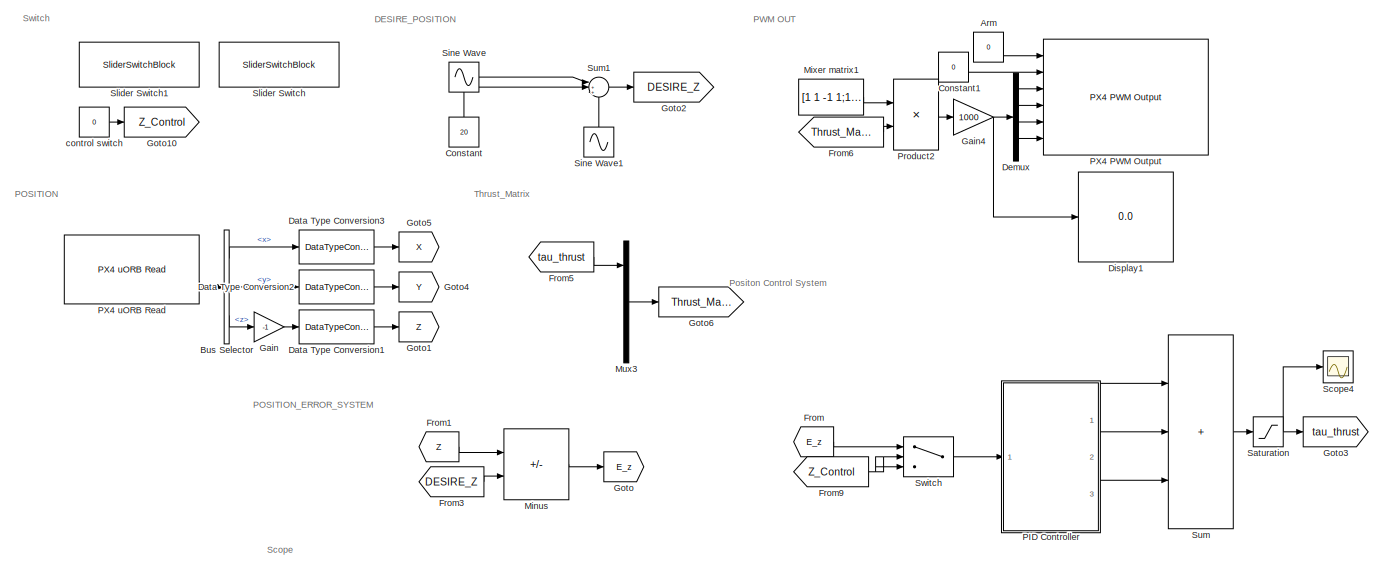
[diagram: root canvas - part 1/2, full width, top band]
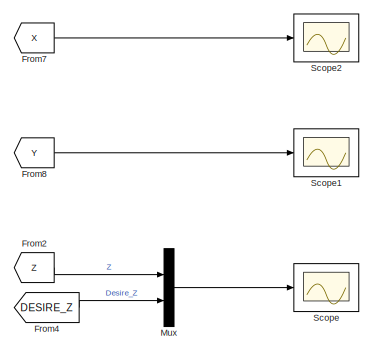
[diagram: root canvas - part 2/2, bottom center region]
MODEL slx_bd8e3afc3680
KIND model
CONFIG AbsTol = auto
CONFIG EnableMultiTasking = on
CONFIG FixedStep = auto
CONFIG MaxStep = auto
CONFIG MinStep = auto
CONFIG RelTol = 1e-3
CONFIG SampleTimeConstraint = Unconstrained
CONFIG SolverName = FixedStepDiscrete
CONFIG StartTime = 0.0
CONFIG StopTime = inf
BLOCK [Constant] Arm
  OutDataTypeStr = boolean
  Value = 0
BLOCK [BusSelector] Bus Selector
  OutputSignals = x,y,z
  Ports = [1, 3]
BLOCK [Constant] Constant
  NameLocation = right
  Value = 20
BLOCK [Constant] Constant1
  OutDataTypeStr = boolean
  Value = 0
BLOCK [DataTypeConversion] Data Type Conversion1
  OutDataTypeStr = double
  RndMeth = Floor
  SaturateOnIntegerOverflow = off
BLOCK [DataTypeConversion] Data Type Conversion2
  OutDataTypeStr = double
  RndMeth = Floor
  SaturateOnIntegerOverflow = off
BLOCK [DataTypeConversion] Data Type Conversion3
  OutDataTypeStr = double
  RndMeth = Floor
  SaturateOnIntegerOverflow = off
BLOCK [Demux] Demux
  Ports = [1, 4]
BLOCK [Display] Display1
  Decimation = 1
  Ports = [1]
BLOCK [From] From
  GotoTag = E_z
  TagVisibility = global
BLOCK [From] From1
  GotoTag = Z
  TagVisibility = global
BLOCK [From] From2
  GotoTag = Z
  TagVisibility = global
BLOCK [From] From3
  GotoTag = DESIRE_Z
  TagVisibility = global
BLOCK [From] From4
  GotoTag = DESIRE_Z
  TagVisibility = global
BLOCK [From] From5
  GotoTag = tau_thrust
BLOCK [From] From6
  GotoTag = Thrust_Matrix
  TagVisibility = global
BLOCK [From] From7
  GotoTag = X
  TagVisibility = global
BLOCK [From] From8
  GotoTag = Y
  TagVisibility = global
BLOCK [From] From9
  GotoTag = Z_Control
  TagVisibility = global
BLOCK [Gain] Gain
  Gain = -1
BLOCK [Gain] Gain4
  Gain = 1000
  OutDataTypeStr = uint16
BLOCK [Goto] Goto
  GotoTag = E_z
  TagVisibility = global
BLOCK [Goto] Goto1
  GotoTag = Z
  TagVisibility = global
BLOCK [Goto] Goto10
  GotoTag = Z_Control
  TagVisibility = global
BLOCK [Goto] Goto2
  GotoTag = DESIRE_Z
  TagVisibility = global
BLOCK [Goto] Goto3
  GotoTag = tau_thrust
BLOCK [Goto] Goto4
  GotoTag = Y
  TagVisibility = global
BLOCK [Goto] Goto5
  GotoTag = X
  TagVisibility = global
BLOCK [Goto] Goto6
  GotoTag = Thrust_Matrix
  TagVisibility = global
BLOCK [Sum] Minus
  IconShape = rectangular
  Inputs = -+
  Ports = [2, 1]
BLOCK [Constant] Mixer matrix1
  NameLocation = top
  OutDataTypeStr = Inherit: Inherit via back propagation
  Value = [1 1 -1 1;1 -1 1 1;1 1 1 -1;1 -1 -1 -1]
BLOCK [Mux] Mux
  DisplayOption = bar
  Inputs = 2
  Ports = [2, 1]
BLOCK [Mux] Mux3
  DisplayOption = bar
  Ports = [4, 1]
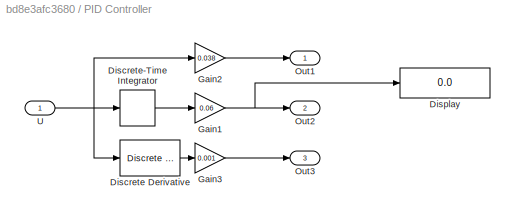
BLOCK [SubSystem] PID Controller
  Ports = [1, 3]
  RequestExecContextInheritance = off
BLOCK [Reference] PID Controller/Discrete Derivative  REF=simulink/Discrete/Discrete Derivative
  Ports = [1, 1]
  SourceBlock = simulink/Discrete/Discrete Derivative
  SourceProductBaseCode = SL
  SourceType = Discrete Derivative
BLOCK [DiscreteIntegrator] PID Controller/Discrete-Time Integrator
  ICPrevOutput = DiscIntNeverNeededParam
  ICPrevScaledInput = DiscIntNeverNeededParam
  InitialConditionSetting = Auto
  LowerSaturationLimit = -1.7
  Ports = [1, 1]
  SampleTime = -1
  UpperSaturationLimit = 1.7
BLOCK [Display] PID Controller/Display
  Decimation = 1
  Ports = [1]
BLOCK [Gain] PID Controller/Gain1
  Gain = 0.06
BLOCK [Gain] PID Controller/Gain2
  Gain = 0.038
BLOCK [Gain] PID Controller/Gain3
  Gain = 0.001
BLOCK [Outport] PID Controller/Out1
BLOCK [Outport] PID Controller/Out2
  Port = 2
BLOCK [Outport] PID Controller/Out3
  Port = 3
BLOCK [Inport] PID Controller/U
BLOCK [Reference] PX4 PWM Output  REF=px4lib/PX4 PWM Output
  Ports = [6]
  SourceBlock = px4lib/PX4 PWM Output
  SourceProductBaseCode = PX4AUTOPILOTS
  SourceType = PX4 PWM Output
BLOCK [Reference] PX4 uORB Read  REF=px4uORBlib/PX4 uORB Read
  Ports = [0, 2]
  SourceBlock = px4uORBlib/PX4 uORB Read
  SourceProductBaseCode = PX4AUTOPILOTS
  SourceType = PX4 uORB Read
BLOCK [Product] Product2
  Multiplication = Matrix(*)
  Ports = [2, 1]
  RndMeth = Zero
BLOCK [Saturate] Saturation
  LowerLimit = -1.6
  UpperLimit = 1.6
BLOCK [Scope] Scope
  Floating = off
  NumInputPorts = 1
  Ports = [1]
  ScopeSpecificationString = Simulink.scopes.TimeScopeBlockCfg('CurrentConfiguration', extmgr.ConfigurationSet(extmgr.Configuration('Core','General UI',true),extmgr.Configuration('Core','Source UI',true),extmgr.Configuration('Sources','WiredSimulink',true),extmgr.Configuration('Visuals','Time Domain',true,'SerializedDisplays',{struct('MinYLimReal','9.52606','MaxYLimReal','20.68049','YLabelReal','','MinYLimMag','9.52606','MaxY...<+1444ch>
BLOCK [Scope] Scope1
  Floating = off
  NumInputPorts = 1
  Ports = [1]
  ScopeSpecificationString = Simulink.scopes.TimeScopeBlockCfg('CurrentConfiguration', extmgr.ConfigurationSet(extmgr.Configuration('Core','General UI',true),extmgr.Configuration('Core','Source UI',true),extmgr.Configuration('Sources','WiredSimulink',true,'DataLoggingVariableName','ScopeData1'),extmgr.Configuration('Visuals','Time Domain',true,'SerializedDisplays',{struct('MinYLimReal','-9.52192','MaxYLimReal','36.47982','YLa...<+1481ch>
BLOCK [Scope] Scope2
  Floating = off
  NumInputPorts = 1
  Ports = [1]
  ScopeSpecificationString = Simulink.scopes.TimeScopeBlockCfg('CurrentConfiguration', extmgr.ConfigurationSet(extmgr.Configuration('Core','General UI',true),extmgr.Configuration('Core','Source UI',true),extmgr.Configuration('Sources','WiredSimulink',true,'DataLoggingVariableName','ScopeData2'),extmgr.Configuration('Visuals','Time Domain',true,'SerializedDisplays',{struct('MinYLimReal','-0.12968','MaxYLimReal','1.12763','YLab...<+1477ch>
BLOCK [Scope] Scope4
  Floating = off
  NumInputPorts = 1
  Ports = [1]
  ScopeSpecificationString = Simulink.scopes.TimeScopeBlockCfg('CurrentConfiguration', extmgr.ConfigurationSet(extmgr.Configuration('Core','General UI',true),extmgr.Configuration('Core','Source UI',true),extmgr.Configuration('Sources','WiredSimulink',true,'DataLoggingVariableName','ScopeData4'),extmgr.Configuration('Visuals','Time Domain',true,'SerializedDisplays',{struct('MinYLimReal','-1.01939','MaxYLimReal','1.64727','YLab...<+1481ch>
BLOCK [Sin] Sine Wave
  Amplitude = 10
  Ports = [0, 1]
  SampleTime = 0
BLOCK [Sin] Sine Wave1
  Amplitude = 2
  Frequency = 100
  NameLocation = right
  Phase = 10
  Ports = [0, 1]
  SampleTime = 0
BLOCK [SliderSwitchBlock] Slider Switch
BLOCK [SliderSwitchBlock] Slider Switch1
BLOCK [Sum] Sum
  IconShape = rectangular
  Inputs = |+++
  Ports = [3, 1]
BLOCK [Sum] Sum1
  Inputs = |+++
  Ports = [3, 1]
BLOCK [Switch] Switch
  Criteria = u2 ~= 0
  InputSameDT = off
  SaturateOnIntegerOverflow = off
BLOCK [Constant] control switch
  Value = 0
ANNOTATION (root): DESIRE_POSITION
ANNOTATION (root): POSITION
ANNOTATION (root): POSITION_ERROR_SYSTEM
ANNOTATION (root): PWM OUT
ANNOTATION (root): Positon Control System
ANNOTATION (root): Scope
ANNOTATION (root): Switch
ANNOTATION (root): Thrust_Matrix
LINE Arm:1 -> PX4 PWM Output:1
LINE Bus Selector:1 -> Data Type Conversion3:1
LINE Bus Selector:2 -> Data Type Conversion2:1
LINE Bus Selector:3 -> Gain:1
LINE Constant1:1 -> PX4 PWM Output:2
LINE Constant:1 -> Sum1:2
LINE Data Type Conversion1:1 -> Goto1:1
LINE Data Type Conversion2:1 -> Goto4:1
LINE Data Type Conversion3:1 -> Goto5:1
LINE Demux:1 -> PX4 PWM Output:3
LINE Demux:2 -> PX4 PWM Output:4
LINE Demux:3 -> PX4 PWM Output:5
LINE Demux:4 -> PX4 PWM Output:6
LINE From1:1 -> Minus:1
LINE From2:1 -> Mux:1
LINE From3:1 -> Minus:2
LINE From4:1 -> Mux:2
LINE From5:1 -> Mux3:1
LINE From6:1 -> Product2:2
LINE From7:1 -> Scope2:1
LINE From8:1 -> Scope1:1
NET From9:1 -> Switch:2, Switch:3
LINE From:1 -> Switch:1
NET Gain4:1 -> Demux:1, Display1:1
LINE Gain:1 -> Data Type Conversion1:1
LINE Minus:1 -> Goto:1
LINE Mixer matrix1:1 -> Product2:1
LINE Mux3:1 -> Goto6:1
LINE Mux:1 -> Scope:1
LINE PID Controller/Discrete Derivative:1 -> PID Controller/Gain3:1
LINE PID Controller/Discrete-Time Integrator:1 -> PID Controller/Gain1:1
NET PID Controller/Gain1:1 -> PID Controller/Display:1, PID Controller/Out2:1
LINE PID Controller/Gain2:1 -> PID Controller/Out1:1
LINE PID Controller/Gain3:1 -> PID Controller/Out3:1
NET PID Controller/U:1 -> PID Controller/Discrete Derivative:1, PID Controller/Discrete-Time Integrator:1, PID Controller/Gain2:1
LINE PID Controller:1 -> Sum:1
LINE PID Controller:2 -> Sum:2
LINE PID Controller:3 -> Sum:3
LINE PX4 uORB Read:2 -> Bus Selector:1
LINE Product2:1 -> Gain4:1
NET Saturation:1 -> Goto3:1, Scope4:1
LINE Sine Wave1:1 -> Sum1:3
LINE Sine Wave:1 -> Sum1:1
LINE Sum1:1 -> Goto2:1
LINE Sum:1 -> Saturation:1
LINE Switch:1 -> PID Controller:1
LINE control switch:1 -> Goto10:1
note: NET lines group one-source signal fan-out (src -> all destinations, sorted); 1:1 wires keep LINE
